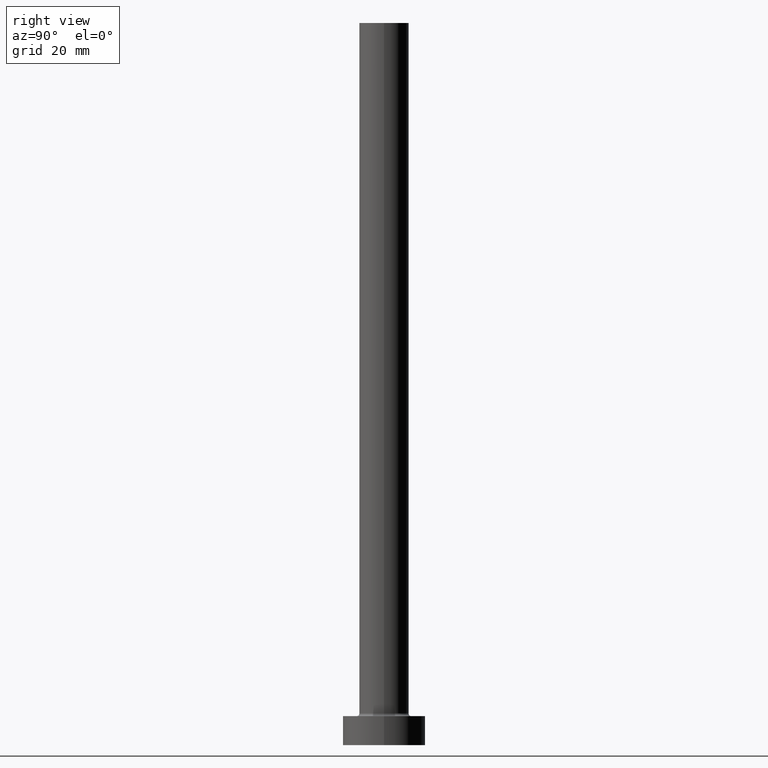
[diagram: clean part render]
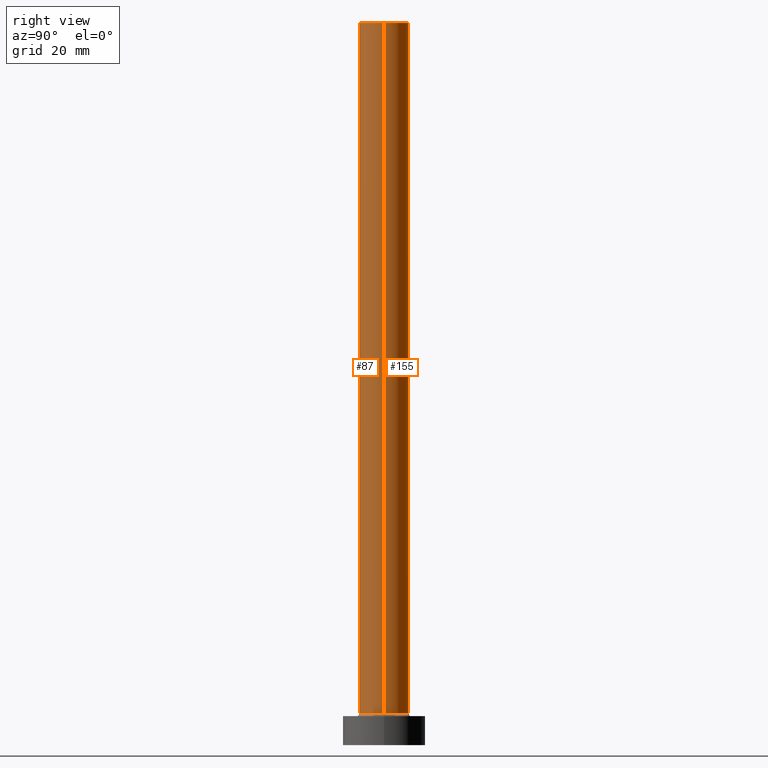
[diagram: same view with one multi-face feature highlighted, each face labeled with its STEP entity id]
A machine part, right view. The highlighted faces form ONE feature: a constant-radius fillet chain: 2 tangent blend faces with common blend radius 6 mm. The faces share edges in the B-rep.
Their STEP definitions:
[1] entity #155 (Cylinder):
#11 = AXIS2_PLACEMENT_3D ( 'NONE', #54, #368, #307 ) ;
#37 = AXIS2_PLACEMENT_3D ( 'NONE', #256, #110, #180 ) ;
#54 = CARTESIAN_POINT ( 'NONE',  ( 0.000000000000000000, 0.000000000000000000, 175.0000000000000284 ) ) ;
#84 = CARTESIAN_POINT ( 'NONE',  ( -6.000000000000000888, 0.000000000000000000, 175.0000000000000284 ) ) ;
#90 = ORIENTED_EDGE ( 'NONE', *, *, #317, .T. ) ;
#91 = DIRECTION ( 'NONE',  ( -0.000000000000000000, -0.000000000000000000, -1.000000000000000000 ) ) ;
#92 = VERTEX_POINT ( 'NONE', #397 ) ;
#98 = VERTEX_POINT ( 'NONE', #398 ) ;
#100 = EDGE_CURVE ( 'NONE', #233, #92, #181, .T. ) ;
#101 = DIRECTION ( 'NONE',  ( 1.000000000000000000, 0.000000000000000000, 0.000000000000000000 ) ) ;
#104 = CIRCLE ( 'NONE', #364, 6.000000000000000888 ) ;
#110 = DIRECTION ( 'NONE',  ( 0.000000000000000000, 0.000000000000000000, 1.000000000000000000 ) ) ;
#155 = ADVANCED_FACE ( 'NONE', ( #231 ), #374, .T. ) ;
#163 = CIRCLE ( 'NONE', #37, 6.000000000000000888 ) ;
#169 = CARTESIAN_POINT ( 'NONE',  ( 6.000000000000000888, 7.347880794884119736E-16, 175.0000000000000284 ) ) ;
#180 = DIRECTION ( 'NONE',  ( 1.000000000000000000, 0.000000000000000000, 0.000000000000000000 ) ) ;
#181 = LINE ( 'NONE', #84, #417 ) ;
#200 = EDGE_LOOP ( 'NONE', ( #440, #312, #90, #371 ) ) ;
#231 = FACE_OUTER_BOUND ( 'NONE', #200, .T. ) ;
#233 = VERTEX_POINT ( 'NONE', #343 ) ;
#238 = EDGE_CURVE ( 'NONE', #98, #304, #407, .T. ) ;
#256 = CARTESIAN_POINT ( 'NONE',  ( 0.000000000000000000, 0.000000000000000000, 175.0000000000000284 ) ) ;
#261 = DIRECTION ( 'NONE',  ( -0.000000000000000000, -0.000000000000000000, -1.000000000000000000 ) ) ;
#284 = DIRECTION ( 'NONE',  ( 0.000000000000000000, 0.000000000000000000, 1.000000000000000000 ) ) ;
#304 = VERTEX_POINT ( 'NONE', #456 ) ;
#307 = DIRECTION ( 'NONE',  ( -1.000000000000000000, 0.000000000000000000, 0.000000000000000000 ) ) ;
#312 = ORIENTED_EDGE ( 'NONE', *, *, #238, .T. ) ;
#317 = EDGE_CURVE ( 'NONE', #304, #92, #104, .T. ) ;
#343 = CARTESIAN_POINT ( 'NONE',  ( -6.000000000000000888, 0.000000000000000000, 175.0000000000000284 ) ) ;
#364 = AXIS2_PLACEMENT_3D ( 'NONE', #416, #284, #101 ) ;
#368 = DIRECTION ( 'NONE',  ( -0.000000000000000000, -0.000000000000000000, -1.000000000000000000 ) ) ;
#371 = ORIENTED_EDGE ( 'NONE', *, *, #100, .F. ) ;
#374 = CYLINDRICAL_SURFACE ( 'NONE', #11, 6.000000000000000888 ) ;
#393 = VECTOR ( 'NONE', #91, 1000.000000000000000 ) ;
#397 = CARTESIAN_POINT ( 'NONE',  ( -6.000000000000000888, 0.000000000000000000, 7.700000000000012612 ) ) ;
#398 = CARTESIAN_POINT ( 'NONE',  ( 6.000000000000000888, 7.347880794884119736E-16, 175.0000000000000284 ) ) ;
#407 = LINE ( 'NONE', #169, #393 ) ;
#416 = CARTESIAN_POINT ( 'NONE',  ( 0.000000000000000000, 0.000000000000000000, 7.700000000000012612 ) ) ;
#417 = VECTOR ( 'NONE', #261, 1000.000000000000000 ) ;
#418 = EDGE_CURVE ( 'NONE', #98, #233, #163, .T. ) ;
#440 = ORIENTED_EDGE ( 'NONE', *, *, #418, .F. ) ;
#456 = CARTESIAN_POINT ( 'NONE',  ( 6.000000000000000888, 7.347880794884119736E-16, 7.700000000000012612 ) ) ;
[2] entity #87 (Cylinder):
#5 = DIRECTION ( 'NONE',  ( 1.000000000000000000, 0.000000000000000000, 0.000000000000000000 ) ) ;
#18 = ORIENTED_EDGE ( 'NONE', *, *, #402, .T. ) ;
#64 = ORIENTED_EDGE ( 'NONE', *, *, #237, .F. ) ;
#72 = CARTESIAN_POINT ( 'NONE',  ( 0.000000000000000000, 0.000000000000000000, 7.700000000000012612 ) ) ;
#84 = CARTESIAN_POINT ( 'NONE',  ( -6.000000000000000888, 0.000000000000000000, 175.0000000000000284 ) ) ;
#87 = ADVANCED_FACE ( 'NONE', ( #431 ), #460, .T. ) ;
#91 = DIRECTION ( 'NONE',  ( -0.000000000000000000, -0.000000000000000000, -1.000000000000000000 ) ) ;
#92 = VERTEX_POINT ( 'NONE', #397 ) ;
#98 = VERTEX_POINT ( 'NONE', #398 ) ;
#100 = EDGE_CURVE ( 'NONE', #233, #92, #181, .T. ) ;
#113 = DIRECTION ( 'NONE',  ( -0.000000000000000000, -0.000000000000000000, -1.000000000000000000 ) ) ;
#123 = DIRECTION ( 'NONE',  ( 0.000000000000000000, 0.000000000000000000, 1.000000000000000000 ) ) ;
#124 = AXIS2_PLACEMENT_3D ( 'NONE', #366, #123, #267 ) ;
#167 = EDGE_LOOP ( 'NONE', ( #447, #64, #209, #18 ) ) ;
#169 = CARTESIAN_POINT ( 'NONE',  ( 6.000000000000000888, 7.347880794884119736E-16, 175.0000000000000284 ) ) ;
#181 = LINE ( 'NONE', #84, #417 ) ;
#191 = CARTESIAN_POINT ( 'NONE',  ( 0.000000000000000000, 0.000000000000000000, 175.0000000000000284 ) ) ;
#209 = ORIENTED_EDGE ( 'NONE', *, *, #100, .T. ) ;
#233 = VERTEX_POINT ( 'NONE', #343 ) ;
#237 = EDGE_CURVE ( 'NONE', #233, #98, #351, .T. ) ;
#238 = EDGE_CURVE ( 'NONE', #98, #304, #407, .T. ) ;
#254 = CIRCLE ( 'NONE', #290, 6.000000000000000888 ) ;
#258 = DIRECTION ( 'NONE',  ( -1.000000000000000000, 0.000000000000000000, 0.000000000000000000 ) ) ;
#261 = DIRECTION ( 'NONE',  ( -0.000000000000000000, -0.000000000000000000, -1.000000000000000000 ) ) ;
#267 = DIRECTION ( 'NONE',  ( 1.000000000000000000, 0.000000000000000000, 0.000000000000000000 ) ) ;
#290 = AXIS2_PLACEMENT_3D ( 'NONE', #72, #324, #5 ) ;
#304 = VERTEX_POINT ( 'NONE', #456 ) ;
#324 = DIRECTION ( 'NONE',  ( 0.000000000000000000, 0.000000000000000000, 1.000000000000000000 ) ) ;
#343 = CARTESIAN_POINT ( 'NONE',  ( -6.000000000000000888, 0.000000000000000000, 175.0000000000000284 ) ) ;
#351 = CIRCLE ( 'NONE', #124, 6.000000000000000888 ) ;
#354 = AXIS2_PLACEMENT_3D ( 'NONE', #191, #113, #258 ) ;
#366 = CARTESIAN_POINT ( 'NONE',  ( 0.000000000000000000, 0.000000000000000000, 175.0000000000000284 ) ) ;
#393 = VECTOR ( 'NONE', #91, 1000.000000000000000 ) ;
#397 = CARTESIAN_POINT ( 'NONE',  ( -6.000000000000000888, 0.000000000000000000, 7.700000000000012612 ) ) ;
#398 = CARTESIAN_POINT ( 'NONE',  ( 6.000000000000000888, 7.347880794884119736E-16, 175.0000000000000284 ) ) ;
#402 = EDGE_CURVE ( 'NONE', #92, #304, #254, .T. ) ;
#407 = LINE ( 'NONE', #169, #393 ) ;
#417 = VECTOR ( 'NONE', #261, 1000.000000000000000 ) ;
#431 = FACE_OUTER_BOUND ( 'NONE', #167, .T. ) ;
#447 = ORIENTED_EDGE ( 'NONE', *, *, #238, .F. ) ;
#456 = CARTESIAN_POINT ( 'NONE',  ( 6.000000000000000888, 7.347880794884119736E-16, 7.700000000000012612 ) ) ;
#460 = CYLINDRICAL_SURFACE ( 'NONE', #354, 6.000000000000000888 ) ;